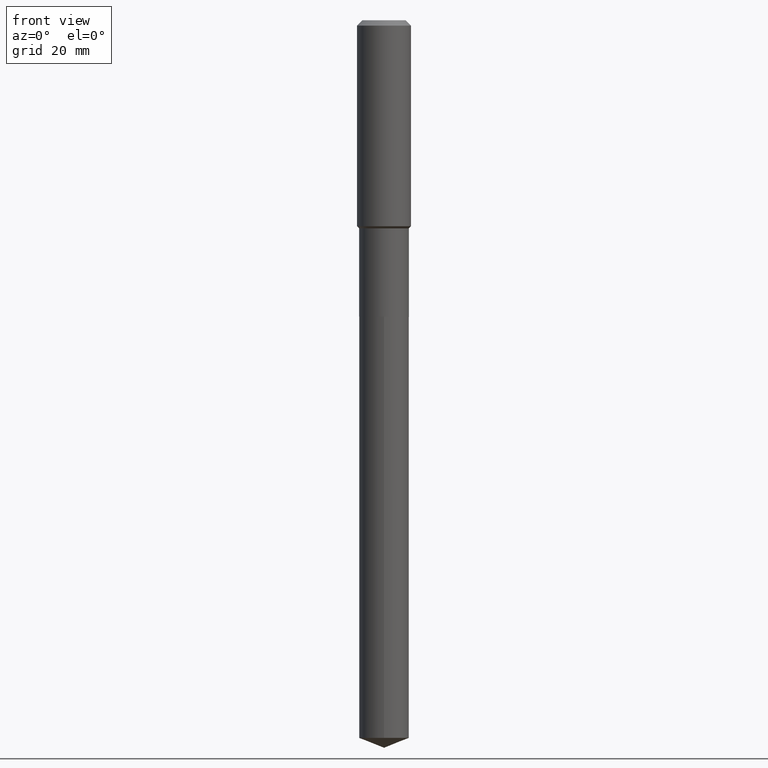
[diagram: clean part render]
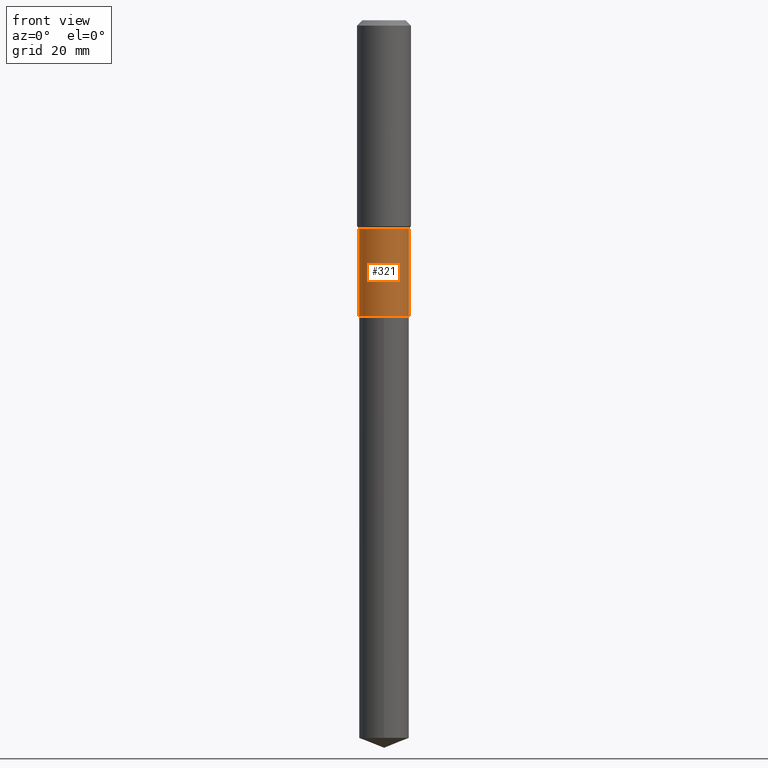
[diagram: same view with one face highlighted and labeled with its STEP entity id]
A machine part, front view. The second image highlights one B-rep face of the part: STEP entity #321.
In plain terms, the highlighted cylindrical surface (edge-blend (fillet) strip) has radius 5.5499 mm, axis along (-0, 0, 1).
Its self-contained STEP definition (entity closure, byte-faithful):
#17 = AXIS2_PLACEMENT_3D ( 'NONE', #361, #56, #213 ) ;
#25 = CARTESIAN_POINT ( 'NONE',  ( 0.000000000000000000, 0.000000000000000000, 0.000000000000000000 ) ) ;
#35 = DIRECTION ( 'NONE',  ( 1.000000000000000000, -6.982962677686269077E-15, 0.000000000000000000 ) ) ;
#36 = DIRECTION ( 'NONE',  ( -2.445468806185136597E-29, 3.491481338843145583E-15, 1.000000000000000000 ) ) ;
#56 = DIRECTION ( 'NONE',  ( -2.445468806185136597E-29, 3.491481338843145583E-15, 1.000000000000000000 ) ) ;
#59 = AXIS2_PLACEMENT_3D ( 'NONE', #25, #36, #336 ) ;
#78 = ORIENTED_EDGE ( 'NONE', *, *, #335, .T. ) ;
#82 = CARTESIAN_POINT ( 'NONE',  ( -0.2184999999999999443, 1.552535877635818510E-15, -1.074787317220696738E-29 ) ) ;
#91 = CIRCLE ( 'NONE', #364, 0.2184999999999999998 ) ;
#102 = FACE_OUTER_BOUND ( 'NONE', #200, .T. ) ;
#107 = CYLINDRICAL_SURFACE ( 'NONE', #59, 0.2184999999999999443 ) ;
#114 = EDGE_CURVE ( 'NONE', #343, #359, #395, .T. ) ;
#118 = ORIENTED_EDGE ( 'NONE', *, *, #413, .F. ) ;
#149 = CARTESIAN_POINT ( 'NONE',  ( 6.353083411588368076E-29, -9.070519370180611907E-15, -2.597900000000000542 ) ) ;
#154 = VECTOR ( 'NONE', #189, 39.37007874015748143 ) ;
#155 = VERTEX_POINT ( 'NONE', #405 ) ;
#156 = CARTESIAN_POINT ( 'NONE',  ( 0.2184999999999999165, -7.894588455258233461E-15, -1.824100000000000943 ) ) ;
#189 = DIRECTION ( 'NONE',  ( -2.445468806185136877E-29, 3.491481338843145188E-15, 1.000000000000000000 ) ) ;
#200 = EDGE_LOOP ( 'NONE', ( #118, #78, #375, #228 ) ) ;
#213 = DIRECTION ( 'NONE',  ( 1.000000000000000000, -6.982962677686266711E-15, 0.000000000000000000 ) ) ;
#214 = EDGE_CURVE ( 'NONE', #463, #359, #344, .T. ) ;
#228 = ORIENTED_EDGE ( 'NONE', *, *, #114, .F. ) ;
#278 = DIRECTION ( 'NONE',  ( -2.445468806185136877E-29, 3.491481338843145188E-15, 1.000000000000000000 ) ) ;
#321 = ADVANCED_FACE ( 'NONE', ( #102 ), #107, .T. ) ;
#335 = EDGE_CURVE ( 'NONE', #155, #463, #91, .T. ) ;
#336 = DIRECTION ( 'NONE',  ( 1.000000000000000000, -6.982962677686266711E-15, 4.876176775795935793E-29 ) ) ;
#343 = VERTEX_POINT ( 'NONE', #412 ) ;
#344 = LINE ( 'NONE', #481, #154 ) ;
#358 = LINE ( 'NONE', #82, #419 ) ;
#359 = VERTEX_POINT ( 'NONE', #156 ) ;
#361 = CARTESIAN_POINT ( 'NONE',  ( 4.460779649362309937E-29, -6.368811110183784911E-15, -1.824100000000000943 ) ) ;
#364 = AXIS2_PLACEMENT_3D ( 'NONE', #149, #410, #35 ) ;
#375 = ORIENTED_EDGE ( 'NONE', *, *, #214, .T. ) ;
#395 = CIRCLE ( 'NONE', #17, 0.2184999999999999165 ) ;
#405 = CARTESIAN_POINT ( 'NONE',  ( -0.2184999999999999720, -6.167129362546378913E-15, -2.597900000000000542 ) ) ;
#410 = DIRECTION ( 'NONE',  ( -2.445468806185136597E-29, 3.491481338843145583E-15, 1.000000000000000000 ) ) ;
#412 = CARTESIAN_POINT ( 'NONE',  ( -0.2184999999999999165, -6.167129362546379702E-15, -1.824100000000000943 ) ) ;
#413 = EDGE_CURVE ( 'NONE', #155, #343, #358, .T. ) ;
#419 = VECTOR ( 'NONE', #278, 39.37007874015748143 ) ;
#425 = CARTESIAN_POINT ( 'NONE',  ( 0.2184999999999999998, -1.059629671525506125E-14, -2.597900000000000542 ) ) ;
#463 = VERTEX_POINT ( 'NONE', #425 ) ;
#481 = CARTESIAN_POINT ( 'NONE',  ( 0.2184999999999999443, -1.525777345074448945E-15, 1.065444625511411679E-29 ) ) ;